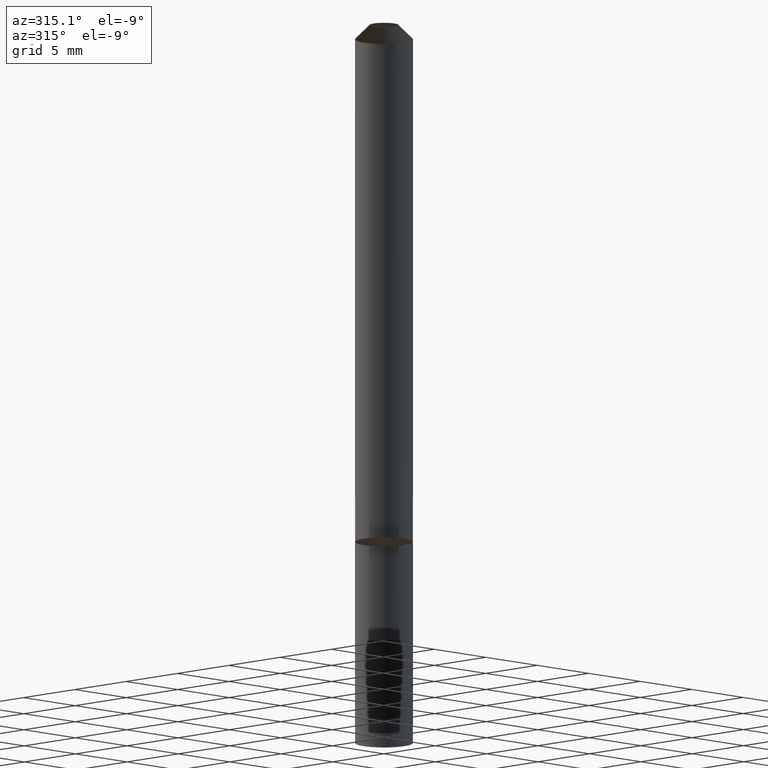
[diagram: clean part render]
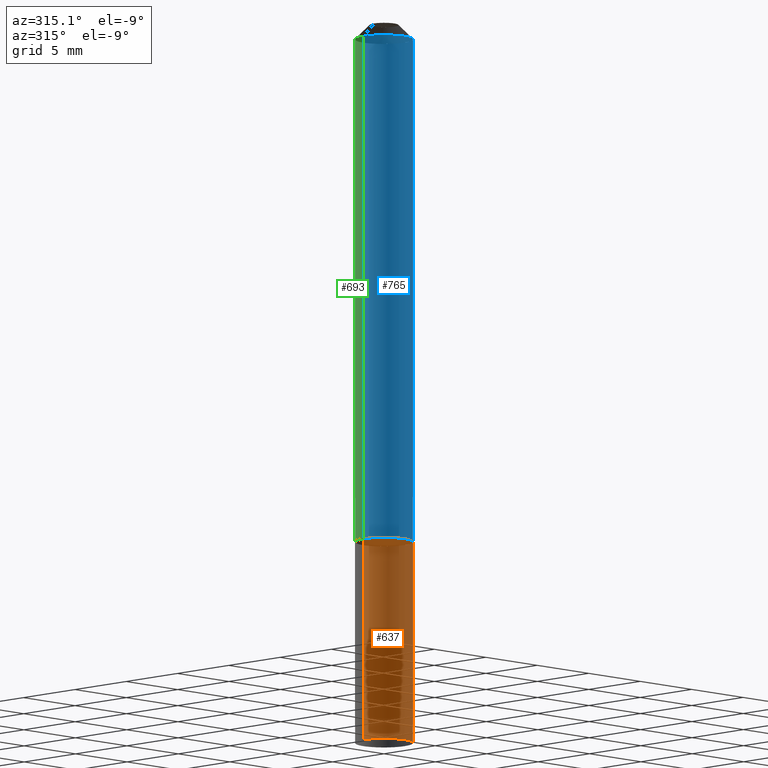
[diagram: same view with three faces highlighted in distinct colors, each labeled with its STEP entity id]
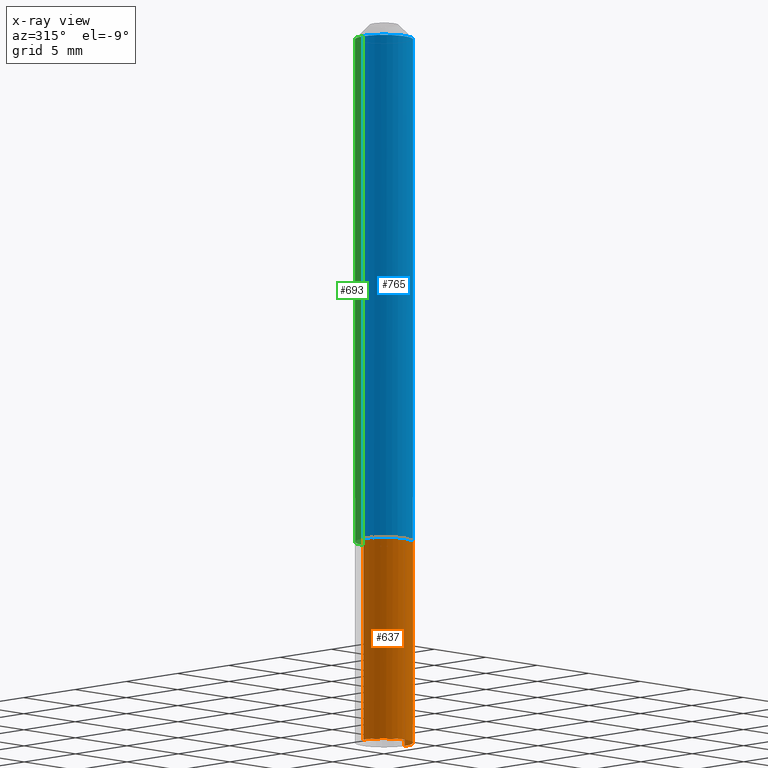
[diagram: x-ray of the same camera — body ghosted, the three highlighted faces saturated]
A machine part, auxiliary view with three faces highlighted in distinct colors.
The next image is the same camera in x-ray (body ghosted, the three faces saturated) — at least one of them is partly hidden behind the body in this view.
Their STEP definitions:

[orange] entity #637 — the highlighted face is a freeform B-spline surface patch.
#109=CARTESIAN_POINT('',(0.0,-2.0,-14.0));
#513=CARTESIAN_POINT('',(2.0,0.0,-14.0));
#516=CARTESIAN_POINT('',(-2.0,0.0,-14.0));
#517=CARTESIAN_POINT('',(2.0,0.0,0.0));
#521=CARTESIAN_POINT('',(-2.0,0.0,0.0));
#523=CARTESIAN_POINT('',(-2.0,-2.0,-14.0));
#524=CARTESIAN_POINT('',(2.0,-2.0,-14.0));
#525=CARTESIAN_POINT('',(-2.0,-2.0,0.0));
#526=CARTESIAN_POINT('',(0.0,-2.0,0.0));
#527=CARTESIAN_POINT('',(2.0,-2.0,0.0));
#618=(
BOUNDED_SURFACE()
B_SPLINE_SURFACE(1,2,(
(#516,#523,#109,#524,#513),
(#521,#525,#526,#527,#517)
), .UNSPECIFIED.,.F.,.F.,.F.)
B_SPLINE_SURFACE_WITH_KNOTS((2,2),(3,2,3),(
0.0,1.0),(
0.0,0.5,1.0), .UNSPECIFIED.)
GEOMETRIC_REPRESENTATION_ITEM()
RATIONAL_B_SPLINE_SURFACE(((1.0,0.707106781187,1.0,0.707106781187,1.0),
(1.0,0.707106781187,1.0,0.707106781187,1.0)
))
REPRESENTATION_ITEM('')
SURFACE()
);
#619=(
BOUNDED_CURVE()
B_SPLINE_CURVE(2,(#513,#524,#109,#523,#516),.UNSPECIFIED.,.F.,.F.)
B_SPLINE_CURVE_WITH_KNOTS((3,2,3),
(0.0,0.5,1.0),.UNSPECIFIED.)
CURVE()
GEOMETRIC_REPRESENTATION_ITEM()
RATIONAL_B_SPLINE_CURVE((1.0,0.707106781187,1.0,0.707106781187,1.0))
REPRESENTATION_ITEM('')
);
#620=(
BOUNDED_CURVE()
B_SPLINE_CURVE(1,(#516,#521),.UNSPECIFIED.,.F.,.F.)
B_SPLINE_CURVE_WITH_KNOTS((2,2),
(0.0,1.0),.UNSPECIFIED.)
CURVE()
GEOMETRIC_REPRESENTATION_ITEM()
RATIONAL_B_SPLINE_CURVE((1.0,1.0))
REPRESENTATION_ITEM('')
);
#621=(
BOUNDED_CURVE()
B_SPLINE_CURVE(2,(#521,#525,#526,#527,#517),.UNSPECIFIED.,.F.,.F.)
B_SPLINE_CURVE_WITH_KNOTS((3,2,3),
(0.0,0.5,1.0),.UNSPECIFIED.)
CURVE()
GEOMETRIC_REPRESENTATION_ITEM()
RATIONAL_B_SPLINE_CURVE((1.0,0.707106781187,1.0,0.707106781187,1.0))
REPRESENTATION_ITEM('')
);
#622=(
BOUNDED_CURVE()
B_SPLINE_CURVE(1,(#517,#513),.UNSPECIFIED.,.F.,.F.)
B_SPLINE_CURVE_WITH_KNOTS((2,2),
(0.0,1.0),.UNSPECIFIED.)
CURVE()
GEOMETRIC_REPRESENTATION_ITEM()
RATIONAL_B_SPLINE_CURVE((1.0,1.0))
REPRESENTATION_ITEM('')
);
#623=VERTEX_POINT('',#513);
#624=VERTEX_POINT('',#516);
#625=VERTEX_POINT('',#517);
#626=VERTEX_POINT('',#521);
#627=EDGE_CURVE('',#623,#624,#619,.T.);
#628=EDGE_CURVE('',#624,#626,#620,.T.);
#629=EDGE_CURVE('',#626,#625,#621,.T.);
#630=EDGE_CURVE('',#625,#623,#622,.T.);
#631=ORIENTED_EDGE('',*,*,#627,.T.);
#632=ORIENTED_EDGE('',*,*,#628,.T.);
#633=ORIENTED_EDGE('',*,*,#629,.T.);
#634=ORIENTED_EDGE('',*,*,#630,.T.);
#635=EDGE_LOOP('',(#631,#632,#633,#634));
#636=FACE_OUTER_BOUND('',#635,.T.);
#637=ADVANCED_FACE('',(#636),#618,.T.);

[blue] entity #765 — the highlighted face is a freeform B-spline surface patch.
#517=CARTESIAN_POINT('',(2.0,0.0,0.0));
#521=CARTESIAN_POINT('',(-2.0,0.0,0.0));
#525=CARTESIAN_POINT('',(-2.0,-2.0,0.0));
#526=CARTESIAN_POINT('',(0.0,-2.0,0.0));
#527=CARTESIAN_POINT('',(2.0,-2.0,0.0));
#528=CARTESIAN_POINT('',(2.0,0.0,35.0));
#532=CARTESIAN_POINT('',(-2.0,0.0,35.0));
#539=CARTESIAN_POINT('',(-2.0,-2.0,35.0));
#540=CARTESIAN_POINT('',(0.0,-2.0,35.0));
#541=CARTESIAN_POINT('',(2.0,-2.0,35.0));
#746=(
BOUNDED_SURFACE()
B_SPLINE_SURFACE(1,2,(
(#521,#525,#526,#527,#517),
(#532,#539,#540,#541,#528)
), .UNSPECIFIED.,.F.,.F.,.F.)
B_SPLINE_SURFACE_WITH_KNOTS((2,2),(3,2,3),(
0.0,1.0),(
0.0,0.5,1.0), .UNSPECIFIED.)
GEOMETRIC_REPRESENTATION_ITEM()
RATIONAL_B_SPLINE_SURFACE(((1.0,0.707106781187,1.0,0.707106781187,1.0),
(1.0,0.707106781187,1.0,0.707106781187,1.0)
))
REPRESENTATION_ITEM('')
SURFACE()
);
#747=(
BOUNDED_CURVE()
B_SPLINE_CURVE(2,(#517,#527,#526,#525,#521),.UNSPECIFIED.,.F.,.F.)
B_SPLINE_CURVE_WITH_KNOTS((3,2,3),
(0.0,0.5,1.0),.UNSPECIFIED.)
CURVE()
GEOMETRIC_REPRESENTATION_ITEM()
RATIONAL_B_SPLINE_CURVE((1.0,0.707106781187,1.0,0.707106781187,1.0))
REPRESENTATION_ITEM('')
);
#748=(
BOUNDED_CURVE()
B_SPLINE_CURVE(1,(#521,#532),.UNSPECIFIED.,.F.,.F.)
B_SPLINE_CURVE_WITH_KNOTS((2,2),
(0.0,1.0),.UNSPECIFIED.)
CURVE()
GEOMETRIC_REPRESENTATION_ITEM()
RATIONAL_B_SPLINE_CURVE((1.0,1.0))
REPRESENTATION_ITEM('')
);
#749=(
BOUNDED_CURVE()
B_SPLINE_CURVE(2,(#532,#539,#540,#541,#528),.UNSPECIFIED.,.F.,.F.)
B_SPLINE_CURVE_WITH_KNOTS((3,2,3),
(0.0,0.5,1.0),.UNSPECIFIED.)
CURVE()
GEOMETRIC_REPRESENTATION_ITEM()
RATIONAL_B_SPLINE_CURVE((1.0,0.707106781187,1.0,0.707106781187,1.0))
REPRESENTATION_ITEM('')
);
#750=(
BOUNDED_CURVE()
B_SPLINE_CURVE(1,(#528,#517),.UNSPECIFIED.,.F.,.F.)
B_SPLINE_CURVE_WITH_KNOTS((2,2),
(0.0,1.0),.UNSPECIFIED.)
CURVE()
GEOMETRIC_REPRESENTATION_ITEM()
RATIONAL_B_SPLINE_CURVE((1.0,1.0))
REPRESENTATION_ITEM('')
);
#751=VERTEX_POINT('',#517);
#752=VERTEX_POINT('',#521);
#753=VERTEX_POINT('',#528);
#754=VERTEX_POINT('',#532);
#755=EDGE_CURVE('',#751,#752,#747,.T.);
#756=EDGE_CURVE('',#752,#754,#748,.T.);
#757=EDGE_CURVE('',#754,#753,#749,.T.);
#758=EDGE_CURVE('',#753,#751,#750,.T.);
#759=ORIENTED_EDGE('',*,*,#755,.T.);
#760=ORIENTED_EDGE('',*,*,#756,.T.);
#761=ORIENTED_EDGE('',*,*,#757,.T.);
#762=ORIENTED_EDGE('',*,*,#758,.T.);
#763=EDGE_LOOP('',(#759,#760,#761,#762));
#764=FACE_OUTER_BOUND('',#763,.T.);
#765=ADVANCED_FACE('',(#764),#746,.T.);

[green] entity #693 — the highlighted face is a freeform B-spline surface patch.
#517=CARTESIAN_POINT('',(2.0,0.0,0.0));
#518=CARTESIAN_POINT('',(2.0,2.0,0.0));
#519=CARTESIAN_POINT('',(0.0,2.0,0.0));
#520=CARTESIAN_POINT('',(-2.0,2.0,0.0));
#521=CARTESIAN_POINT('',(-2.0,0.0,0.0));
#528=CARTESIAN_POINT('',(2.0,0.0,35.0));
#529=CARTESIAN_POINT('',(2.0,2.0,35.0));
#530=CARTESIAN_POINT('',(0.0,2.0,35.0));
#531=CARTESIAN_POINT('',(-2.0,2.0,35.0));
#532=CARTESIAN_POINT('',(-2.0,0.0,35.0));
#674=(
BOUNDED_SURFACE()
B_SPLINE_SURFACE(1,2,(
(#517,#518,#519,#520,#521),
(#528,#529,#530,#531,#532)
), .UNSPECIFIED.,.F.,.F.,.F.)
B_SPLINE_SURFACE_WITH_KNOTS((2,2),(3,2,3),(
0.0,1.0),(
0.0,0.5,1.0), .UNSPECIFIED.)
GEOMETRIC_REPRESENTATION_ITEM()
RATIONAL_B_SPLINE_SURFACE(((1.0,0.707106781187,1.0,0.707106781187,1.0),
(1.0,0.707106781187,1.0,0.707106781187,1.0)
))
REPRESENTATION_ITEM('')
SURFACE()
);
#675=(
BOUNDED_CURVE()
B_SPLINE_CURVE(2,(#521,#520,#519,#518,#517),.UNSPECIFIED.,.F.,.F.)
B_SPLINE_CURVE_WITH_KNOTS((3,2,3),
(0.0,0.5,1.0),.UNSPECIFIED.)
CURVE()
GEOMETRIC_REPRESENTATION_ITEM()
RATIONAL_B_SPLINE_CURVE((1.0,0.707106781187,1.0,0.707106781187,1.0))
REPRESENTATION_ITEM('')
);
#676=(
BOUNDED_CURVE()
B_SPLINE_CURVE(1,(#517,#528),.UNSPECIFIED.,.F.,.F.)
B_SPLINE_CURVE_WITH_KNOTS((2,2),
(0.0,1.0),.UNSPECIFIED.)
CURVE()
GEOMETRIC_REPRESENTATION_ITEM()
RATIONAL_B_SPLINE_CURVE((1.0,1.0))
REPRESENTATION_ITEM('')
);
#677=(
BOUNDED_CURVE()
B_SPLINE_CURVE(2,(#528,#529,#530,#531,#532),.UNSPECIFIED.,.F.,.F.)
B_SPLINE_CURVE_WITH_KNOTS((3,2,3),
(0.0,0.5,1.0),.UNSPECIFIED.)
CURVE()
GEOMETRIC_REPRESENTATION_ITEM()
RATIONAL_B_SPLINE_CURVE((1.0,0.707106781187,1.0,0.707106781187,1.0))
REPRESENTATION_ITEM('')
);
#678=(
BOUNDED_CURVE()
B_SPLINE_CURVE(1,(#532,#521),.UNSPECIFIED.,.F.,.F.)
B_SPLINE_CURVE_WITH_KNOTS((2,2),
(0.0,1.0),.UNSPECIFIED.)
CURVE()
GEOMETRIC_REPRESENTATION_ITEM()
RATIONAL_B_SPLINE_CURVE((1.0,1.0))
REPRESENTATION_ITEM('')
);
#679=VERTEX_POINT('',#517);
#680=VERTEX_POINT('',#521);
#681=VERTEX_POINT('',#528);
#682=VERTEX_POINT('',#532);
#683=EDGE_CURVE('',#680,#679,#675,.T.);
#684=EDGE_CURVE('',#679,#681,#676,.T.);
#685=EDGE_CURVE('',#681,#682,#677,.T.);
#686=EDGE_CURVE('',#682,#680,#678,.T.);
#687=ORIENTED_EDGE('',*,*,#683,.T.);
#688=ORIENTED_EDGE('',*,*,#684,.T.);
#689=ORIENTED_EDGE('',*,*,#685,.T.);
#690=ORIENTED_EDGE('',*,*,#686,.T.);
#691=EDGE_LOOP('',(#687,#688,#689,#690));
#692=FACE_OUTER_BOUND('',#691,.T.);
#693=ADVANCED_FACE('',(#692),#674,.T.);